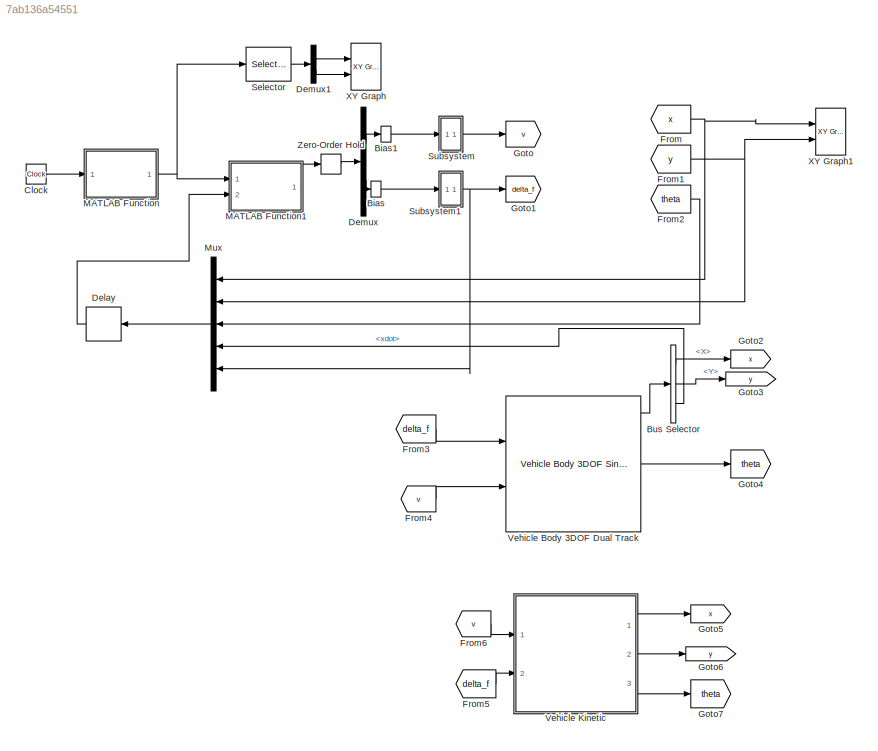
MODEL slx_7ab136a54551
KIND model
CONFIG AbsTol = auto
CONFIG EnableMultiTasking = off
CONFIG FixedStep = 0.05
CONFIG MaxStep = auto
CONFIG MinStep = auto
CONFIG RelTol = 1e-3
CONFIG SampleTimeConstraint = Unconstrained
CONFIG Solver = FixedStepAuto
CONFIG SolverName = FixedStepAuto
CONFIG StartTime = 0.0
CONFIG StopTime = 50
BLOCK [Bias] Bias
  SaturateOnIntegerOverflow = off
BLOCK [Bias] Bias1
  SaturateOnIntegerOverflow = off
BLOCK [BusSelector] Bus Selector
  OutputAsBus = off
  OutputSignals = InertFrm.RearAxl.Disp.X,InertFrm.RearAxl.Disp.Y,BdyFrm.Cg.Vel.xdot
  Ports = [1, 3]
BLOCK [Clock] Clock
BLOCK [Delay] Delay
  DelayLength = 1
  InitialCondition = [0 0 0 -0 0]
  InputPortMap = u0
  Ports = [1, 1]
BLOCK [Demux] Demux
  DisplayOption = bar
  Outputs = 2
  Ports = [1, 2]
BLOCK [Demux] Demux1
  DisplayOption = bar
  Outputs = 2
  Ports = [1, 2]
BLOCK [From] From
  GotoTag = x
BLOCK [From] From1
  GotoTag = y
BLOCK [From] From2
  GotoTag = theta
BLOCK [From] From3
  GotoTag = delta_f
BLOCK [From] From4
  GotoTag = v
BLOCK [From] From5
  Commented = on
  GotoTag = delta_f
BLOCK [From] From6
  Commented = on
  GotoTag = v
BLOCK [Goto] Goto
  GotoTag = v
BLOCK [Goto] Goto1
  GotoTag = delta_f
BLOCK [Goto] Goto2
  GotoTag = x
BLOCK [Goto] Goto3
  GotoTag = y
BLOCK [Goto] Goto4
  GotoTag = theta
BLOCK [Goto] Goto5
  Commented = on
  GotoTag = x
BLOCK [Goto] Goto6
  Commented = on
  GotoTag = y
BLOCK [Goto] Goto7
  Commented = on
  GotoTag = theta
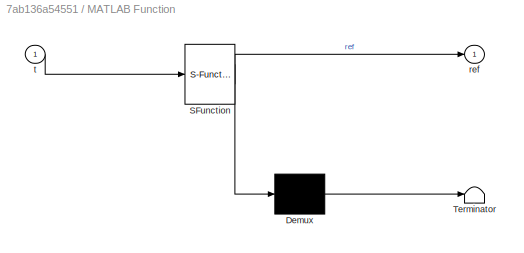
BLOCK [SubSystem] MATLAB Function
  ErrorFcn = Stateflow.Translate.translate
  PermitHierarchicalResolution = ExplicitOnly
  Ports = [1, 1]
  RequestExecContextInheritance = off
  SFBlockType = MATLAB Function
  TreatAsAtomicUnit = on
BLOCK [Demux] MATLAB Function/ Demux 
  Outputs = 1
  Ports = [1, 1]
BLOCK [S-Function] MATLAB Function/ SFunction 
  EnableBusSupport = on
  FunctionName = sf_sfun
  PortCounts = [1 2]
  Ports = [1, 2]
  SFcnIsStateOwnerBlock = off
  SFunctionDeploymentMode = off
  Tag = Stateflow S-Function car_kin_test 2
BLOCK [Terminator] MATLAB Function/ Terminator 
BLOCK [Outport] MATLAB Function/ref
  IconDisplay = Port number
BLOCK [Inport] MATLAB Function/t
  IconDisplay = Port number
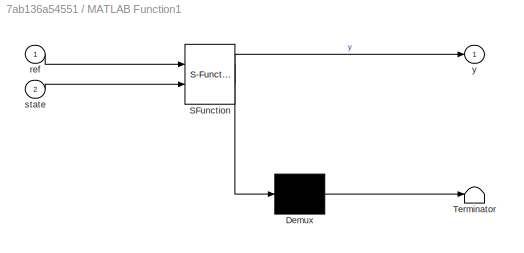
BLOCK [SubSystem] MATLAB Function1
  ErrorFcn = Stateflow.Translate.translate
  PermitHierarchicalResolution = ExplicitOnly
  Ports = [2, 1]
  RequestExecContextInheritance = off
  SFBlockType = MATLAB Function
  TreatAsAtomicUnit = on
BLOCK [Demux] MATLAB Function1/ Demux 
  Outputs = 1
  Ports = [1, 1]
BLOCK [S-Function] MATLAB Function1/ SFunction 
  EnableBusSupport = on
  FunctionName = sf_sfun
  PortCounts = [2 2]
  Ports = [2, 2]
  SFcnIsStateOwnerBlock = off
  SFunctionDeploymentMode = off
  Tag = Stateflow S-Function car_kin_test 1
BLOCK [Terminator] MATLAB Function1/ Terminator 
BLOCK [Inport] MATLAB Function1/ref
  IconDisplay = Port number
BLOCK [Inport] MATLAB Function1/state
  IconDisplay = Port number
  Port = 2
BLOCK [Outport] MATLAB Function1/y
  IconDisplay = Port number
BLOCK [Mux] Mux
  DisplayOption = bar
  Inputs = 5
  Ports = [5, 1]
BLOCK [Selector] Selector
  IndexOptions = Index vector (dialog)
  Indices = [1 2]
  InputPortWidth = 60
  OutputSizes = 1
  Ports = [1, 1]
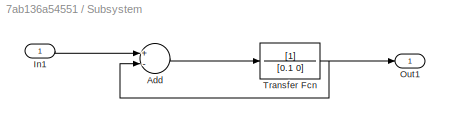
BLOCK [SubSystem] Subsystem
  Ports = [1, 1]
  RequestExecContextInheritance = off
BLOCK [Sum] Subsystem/Add
  InputSameDT = off
  Inputs = +-
  OutDataTypeStr = Inherit: Inherit via internal rule
  Ports = [2, 1]
  SaturateOnIntegerOverflow = off
BLOCK [Inport] Subsystem/In1
  IconDisplay = Port number
BLOCK [Outport] Subsystem/Out1
  IconDisplay = Port number
BLOCK [TransferFcn] Subsystem/Transfer Fcn
  Denominator = [0.1 0]
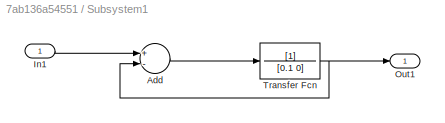
BLOCK [SubSystem] Subsystem1
  Ports = [1, 1]
  RequestExecContextInheritance = off
BLOCK [Sum] Subsystem1/Add
  InputSameDT = off
  Inputs = +-
  OutDataTypeStr = Inherit: Inherit via internal rule
  Ports = [2, 1]
  SaturateOnIntegerOverflow = off
BLOCK [Inport] Subsystem1/In1
  IconDisplay = Port number
BLOCK [Outport] Subsystem1/Out1
  IconDisplay = Port number
BLOCK [TransferFcn] Subsystem1/Transfer Fcn
  Denominator = [0.1 0]
BLOCK [Reference] Vehicle Body 3DOF Dual Track  REF=autolibshared/Vehicle Body 3DOF Single Track
  Ports = [2, 7]
  SourceBlock = autolibshared/Vehicle Body 3DOF Single Track
  SourceProductBaseCode = PW
  SourceProductName = Powertrain Blockset
  SourceType = Vehicle Body 3DOF Lateral
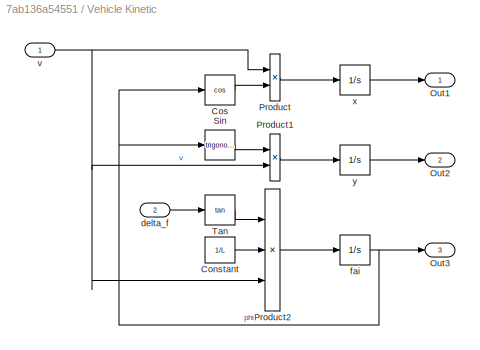
BLOCK [SubSystem] Vehicle Kinetic
  AncestorBlock = my_library/Vehicle Kinetic
  Commented = on
  Ports = [2, 3]
  RequestExecContextInheritance = off
BLOCK [Constant] Vehicle Kinetic/Constant
  Value = 1/L
BLOCK [Trigonometry] Vehicle Kinetic/Cos
  Operator = cos
  Ports = [1, 1]
BLOCK [Outport] Vehicle Kinetic/Out1
  IconDisplay = Port number
BLOCK [Outport] Vehicle Kinetic/Out2
  IconDisplay = Port number
  Port = 2
BLOCK [Outport] Vehicle Kinetic/Out3
  IconDisplay = Port number
  Port = 3
BLOCK [Product] Vehicle Kinetic/Product
  InputSameDT = off
  OutDataTypeStr = Inherit: Inherit via internal rule
  Ports = [2, 1]
  RndMeth = Floor
  SaturateOnIntegerOverflow = off
BLOCK [Product] Vehicle Kinetic/Product1
  InputSameDT = off
  OutDataTypeStr = Inherit: Inherit via internal rule
  Ports = [2, 1]
  RndMeth = Floor
  SaturateOnIntegerOverflow = off
BLOCK [Product] Vehicle Kinetic/Product2
  InputSameDT = off
  Inputs = 3
  OutDataTypeStr = Inherit: Inherit via internal rule
  Ports = [3, 1]
  RndMeth = Floor
  SaturateOnIntegerOverflow = off
BLOCK [Trigonometry] Vehicle Kinetic/Sin
  Ports = [1, 1]
BLOCK [Trigonometry] Vehicle Kinetic/Tan
  Operator = tan
  Ports = [1, 1]
BLOCK [Inport] Vehicle Kinetic/delta_f
  IconDisplay = Port number
  Port = 2
BLOCK [Integrator] Vehicle Kinetic/fai
  InitialCondition = fai
  Ports = [1, 1]
BLOCK [Inport] Vehicle Kinetic/v
  IconDisplay = Port number
BLOCK [Integrator] Vehicle Kinetic/x
  InitialCondition = x
  Ports = [1, 1]
BLOCK [Integrator] Vehicle Kinetic/y
  InitialCondition = y
  Ports = [1, 1]
BLOCK [Reference] XY Graph  REF=simulink/Sinks/XY Graph
  Ports = [2]
  SourceBlock = simulink/Sinks/XY Graph
  SourceProductBaseCode = SL
  SourceProductName = Simulink
  SourceType = XY scope.
BLOCK [Reference] XY Graph1  REF=simulink/Sinks/XY Graph
  Ports = [2]
  SourceBlock = simulink/Sinks/XY Graph
  SourceProductBaseCode = SL
  SourceProductName = Simulink
  SourceType = XY scope.
BLOCK [ZeroOrderHold] Zero-Order Hold
  SampleTime = 0.05
LINE Bias1:1 -> Subsystem:1
LINE Bias:1 -> Subsystem1:1
LINE Bus Selector:1 -> Goto2:1
LINE Bus Selector:2 -> Goto3:1
LINE Bus Selector:3 -> Mux:4
LINE Clock:1 -> MATLAB Function:1
LINE Delay:1 -> MATLAB Function1:2
LINE Demux1:1 -> XY Graph:1
LINE Demux1:2 -> XY Graph:2
LINE Demux:1 -> Bias1:1
LINE Demux:2 -> Bias:1
NET From1:1 -> Mux:2, XY Graph1:2
LINE From2:1 -> Mux:3
LINE From3:1 -> Vehicle Body 3DOF Dual Track:1
LINE From4:1 -> Vehicle Body 3DOF Dual Track:2
LINE From5:1 -> Vehicle Kinetic:2
LINE From6:1 -> Vehicle Kinetic:1
NET From:1 -> Mux:1, XY Graph1:1
LINE MATLAB Function1:1 -> Zero-Order Hold:1
NET MATLAB Function:1 -> MATLAB Function1:1, Selector:1
LINE Mux:1 -> Delay:1
LINE Selector:1 -> Demux1:1
LINE Subsystem/Add:1 -> Subsystem/Transfer Fcn:1
LINE Subsystem/In1:1 -> Subsystem/Add:1
NET Subsystem/Transfer Fcn:1 -> Subsystem/Add:2, Subsystem/Out1:1
LINE Subsystem1/Add:1 -> Subsystem1/Transfer Fcn:1
LINE Subsystem1/In1:1 -> Subsystem1/Add:1
NET Subsystem1/Transfer Fcn:1 -> Subsystem1/Add:2, Subsystem1/Out1:1
NET Subsystem1:1 -> Goto1:1, Mux:5
LINE Subsystem:1 -> Goto:1
LINE Vehicle Body 3DOF Dual Track:1 -> Bus Selector:1
LINE Vehicle Body 3DOF Dual Track:4 -> Goto4:1
LINE Vehicle Kinetic:1 -> Goto5:1
LINE Vehicle Kinetic:2 -> Goto6:1
LINE Vehicle Kinetic:3 -> Goto7:1
LINE Zero-Order Hold:1 -> Demux:1
note: NET lines group one-source signal fan-out (src -> all destinations, sorted); 1:1 wires keep LINE
CHART MATLAB Function1 states=1 transitions=1
  STATE_LABEL 'eML_blk_kernel()'
  STATE_LABEL 'SCRIPT:\nfunction y = myMPC(ref,state)\n%#codegen\nnc=2;\ntemp=zeros(2,1);\ncoder.extrinsic("mymex")\ntemp = mymex(ref,state);\ny=temp;'
CHART MATLAB Function states=1 transitions=1
  STATE_LABEL 'eML_blk_kernel()'
  STATE_LABEL "SCRIPT:\nfunction ref = fcn(t)\n%#codegen\nts=0.05;\nnp=20;\ndt=0:ts:(np-1)*ts;\nref=zeros(3*np,1);\nfor i=1:np\n    ref((i-1)*3+1:i*3)=[dt(i)+t,1,0]';\nend"
